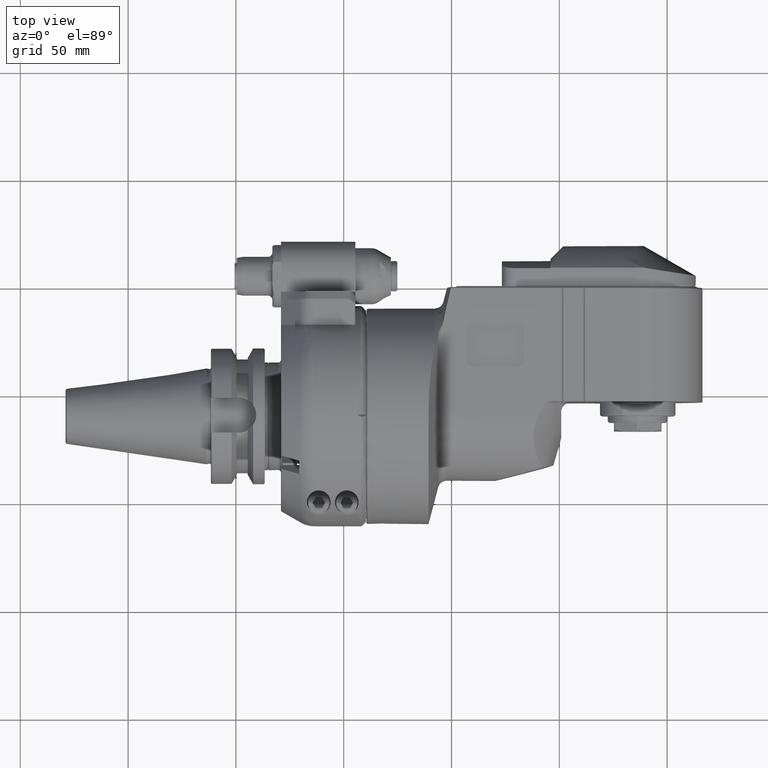
[diagram: clean part render]
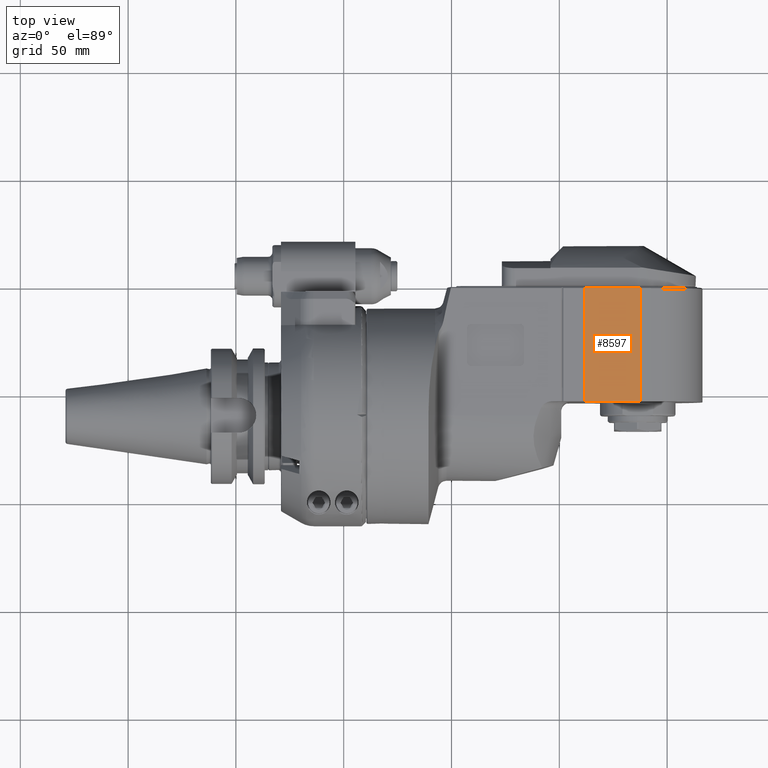
[diagram: same view with one face highlighted and labeled with its STEP entity id]
A machine part, top view. The second image highlights one B-rep face of the part: STEP entity #8597.
In plain terms, the highlighted planar face has unit normal (0, 0, -1).
Its self-contained STEP definition (entity closure, byte-faithful):
#608=LINE('',#15895,#1199);
#629=LINE('',#16015,#1220);
#630=LINE('',#16018,#1221);
#631=LINE('',#16019,#1222);
#1199=VECTOR('',#11252,25.5);
#1220=VECTOR('',#11311,52.5);
#1221=VECTOR('',#11314,25.5);
#1222=VECTOR('',#11315,52.5);
#1989=FACE_OUTER_BOUND('',#2542,.T.);
#2542=EDGE_LOOP('',(#6795,#6796,#6797,#6798));
#3820=VERTEX_POINT('',#15892);
#3821=VERTEX_POINT('',#15894);
#3840=VERTEX_POINT('',#16013);
#3841=VERTEX_POINT('',#16017);
#4875=EDGE_CURVE('',#3820,#3821,#608,.T.);
#4905=EDGE_CURVE('',#3840,#3820,#629,.T.);
#4906=EDGE_CURVE('',#3841,#3840,#630,.T.);
#4907=EDGE_CURVE('',#3821,#3841,#631,.T.);
#6795=ORIENTED_EDGE('',*,*,#4905,.F.);
#6796=ORIENTED_EDGE('',*,*,#4906,.F.);
#6797=ORIENTED_EDGE('',*,*,#4907,.F.);
#6798=ORIENTED_EDGE('',*,*,#4875,.F.);
#8237=PLANE('',#9437);
#8597=ADVANCED_FACE('',(#1989),#8237,.F.);
#9437=AXIS2_PLACEMENT_3D('',#16016,#11312,#11313);
#11252=DIRECTION('',(-1.,0.,0.));
#11311=DIRECTION('',(0.,-1.,0.));
#11312=DIRECTION('center_axis',(0.,0.,-1.));
#11313=DIRECTION('ref_axis',(0.,-1.,0.));
#11314=DIRECTION('',(1.,0.,0.));
#11315=DIRECTION('',(0.,1.,0.));
#15892=CARTESIAN_POINT('',(0.999999999998,6.5,30.));
#15894=CARTESIAN_POINT('',(-24.5,6.5,30.));
#15895=CARTESIAN_POINT('',(0.999999999998,6.5,30.));
#16013=CARTESIAN_POINT('',(0.999999999998,59.,30.));
#16015=CARTESIAN_POINT('',(0.999999999998,59.,30.));
#16016=CARTESIAN_POINT('Origin',(29.,-8.412196286849,30.));
#16017=CARTESIAN_POINT('',(-24.5,59.,30.));
#16018=CARTESIAN_POINT('',(-24.5,59.,30.));
#16019=CARTESIAN_POINT('',(-24.5,6.5,30.));